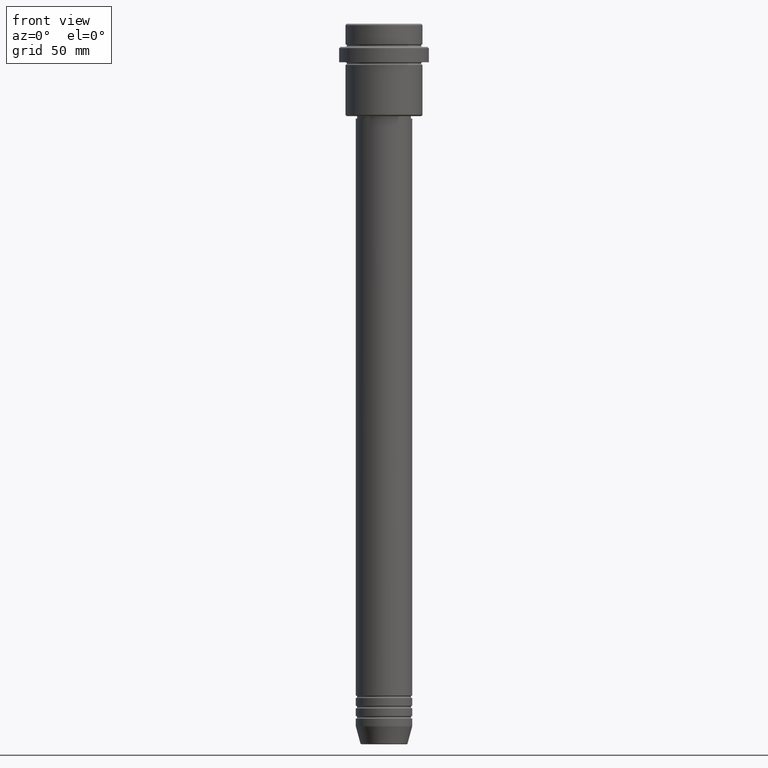
[diagram: clean part render]
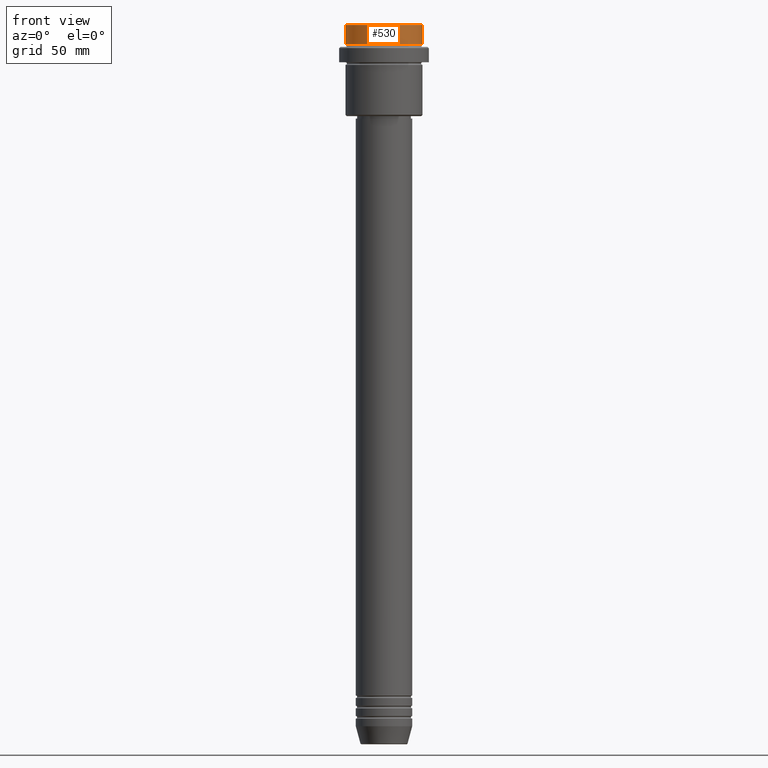
[diagram: same view with one face highlighted and labeled with its STEP entity id]
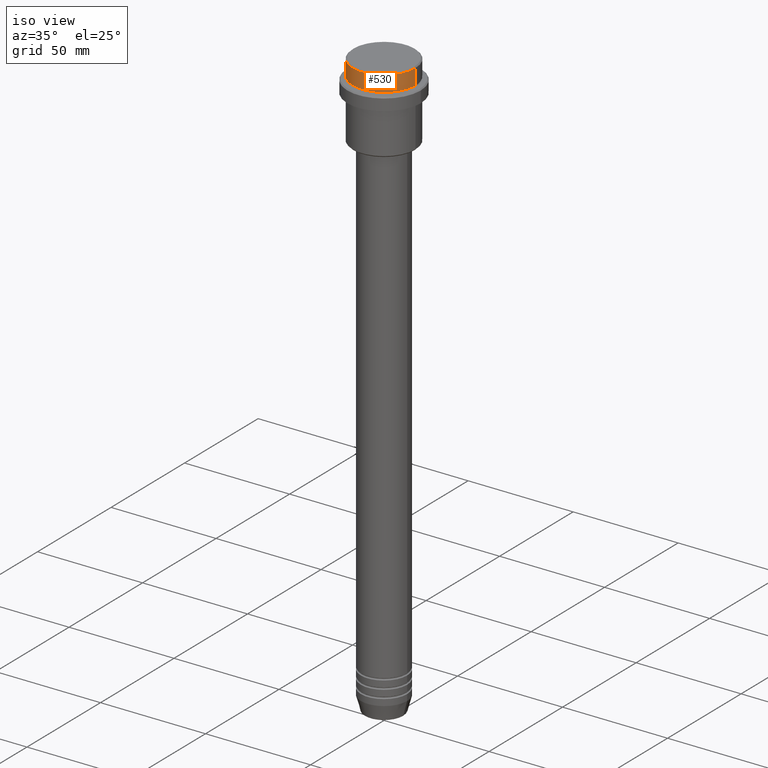
[diagram: same view with one face highlighted and labeled with its STEP entity id]
A machine part, front view. The second image highlights one B-rep face of the part: STEP entity #530.
A second angle (iso view) of the same face is appended — the face is thin or edge-on in the first view.
In plain terms, the highlighted cylindrical surface (partial cylindrical patch) has radius 15 mm, axis along (-0, -0, 1).
Its self-contained STEP definition (entity closure, byte-faithful):
#78 = DIRECTION ( 'NONE',  ( 1.000000000000000000, 0.000000000000000000, 0.000000000000000000 ) ) ;
#85 = CARTESIAN_POINT ( 'NONE',  ( -15.00000000000000000, 1.836970198721029589E-15, 0.000000000000000000 ) ) ;
#113 = CARTESIAN_POINT ( 'NONE',  ( 15.00000000000000000, 0.000000000000000000, -0.5000000000000386358 ) ) ;
#127 = ORIENTED_EDGE ( 'NONE', *, *, #1062, .T. ) ;
#146 = VERTEX_POINT ( 'NONE', #756 ) ;
#156 = CARTESIAN_POINT ( 'NONE',  ( 15.00000000000000000, 0.000000000000000000, 0.000000000000000000 ) ) ;
#163 = DIRECTION ( 'NONE',  ( -0.000000000000000000, -0.000000000000000000, 1.000000000000000000 ) ) ;
#223 = CIRCLE ( 'NONE', #572, 15.00000000000000000 ) ;
#237 = CARTESIAN_POINT ( 'NONE',  ( 0.000000000000000000, 0.000000000000000000, 0.000000000000000000 ) ) ;
#330 = AXIS2_PLACEMENT_3D ( 'NONE', #237, #657, #682 ) ;
#453 = VECTOR ( 'NONE', #536, 1000.000000000000000 ) ;
#469 = CARTESIAN_POINT ( 'NONE',  ( 0.000000000000000000, 0.000000000000000000, -0.5000000000000386358 ) ) ;
#530 = ADVANCED_FACE ( 'NONE', ( #786 ), #1224, .T. ) ;
#536 = DIRECTION ( 'NONE',  ( -0.000000000000000000, -0.000000000000000000, 1.000000000000000000 ) ) ;
#572 = AXIS2_PLACEMENT_3D ( 'NONE', #641, #1076, #78 ) ;
#581 = DIRECTION ( 'NONE',  ( 1.000000000000000000, 0.000000000000000000, 0.000000000000000000 ) ) ;
#641 = CARTESIAN_POINT ( 'NONE',  ( 0.000000000000000000, 0.000000000000000000, -7.999999999999998224 ) ) ;
#657 = DIRECTION ( 'NONE',  ( -0.000000000000000000, -0.000000000000000000, 1.000000000000000000 ) ) ;
#682 = DIRECTION ( 'NONE',  ( 1.000000000000000000, 0.000000000000000000, 0.000000000000000000 ) ) ;
#714 = ORIENTED_EDGE ( 'NONE', *, *, #825, .F. ) ;
#740 = CARTESIAN_POINT ( 'NONE',  ( -15.00000000000000000, 1.836970198721029589E-15, -7.999999999999998224 ) ) ;
#747 = CIRCLE ( 'NONE', #802, 15.00000000000000000 ) ;
#756 = CARTESIAN_POINT ( 'NONE',  ( -15.00000000000000000, 1.836970198721029589E-15, -0.5000000000000386358 ) ) ;
#786 = FACE_OUTER_BOUND ( 'NONE', #1047, .T. ) ;
#802 = AXIS2_PLACEMENT_3D ( 'NONE', #469, #1204, #581 ) ;
#805 = EDGE_CURVE ( 'NONE', #1140, #1054, #223, .T. ) ;
#825 = EDGE_CURVE ( 'NONE', #1140, #146, #859, .T. ) ;
#827 = EDGE_CURVE ( 'NONE', #1369, #146, #747, .T. ) ;
#859 = LINE ( 'NONE', #85, #453 ) ;
#928 = LINE ( 'NONE', #156, #1213 ) ;
#957 = ORIENTED_EDGE ( 'NONE', *, *, #827, .T. ) ;
#1047 = EDGE_LOOP ( 'NONE', ( #714, #1374, #127, #957 ) ) ;
#1054 = VERTEX_POINT ( 'NONE', #1152 ) ;
#1062 = EDGE_CURVE ( 'NONE', #1054, #1369, #928, .T. ) ;
#1076 = DIRECTION ( 'NONE',  ( -0.000000000000000000, -0.000000000000000000, 1.000000000000000000 ) ) ;
#1140 = VERTEX_POINT ( 'NONE', #740 ) ;
#1152 = CARTESIAN_POINT ( 'NONE',  ( 15.00000000000000000, 0.000000000000000000, -7.999999999999998224 ) ) ;
#1204 = DIRECTION ( 'NONE',  ( 0.000000000000000000, 0.000000000000000000, -1.000000000000000000 ) ) ;
#1213 = VECTOR ( 'NONE', #163, 1000.000000000000000 ) ;
#1224 = CYLINDRICAL_SURFACE ( 'NONE', #330, 15.00000000000000000 ) ;
#1369 = VERTEX_POINT ( 'NONE', #113 ) ;
#1374 = ORIENTED_EDGE ( 'NONE', *, *, #805, .T. ) ;